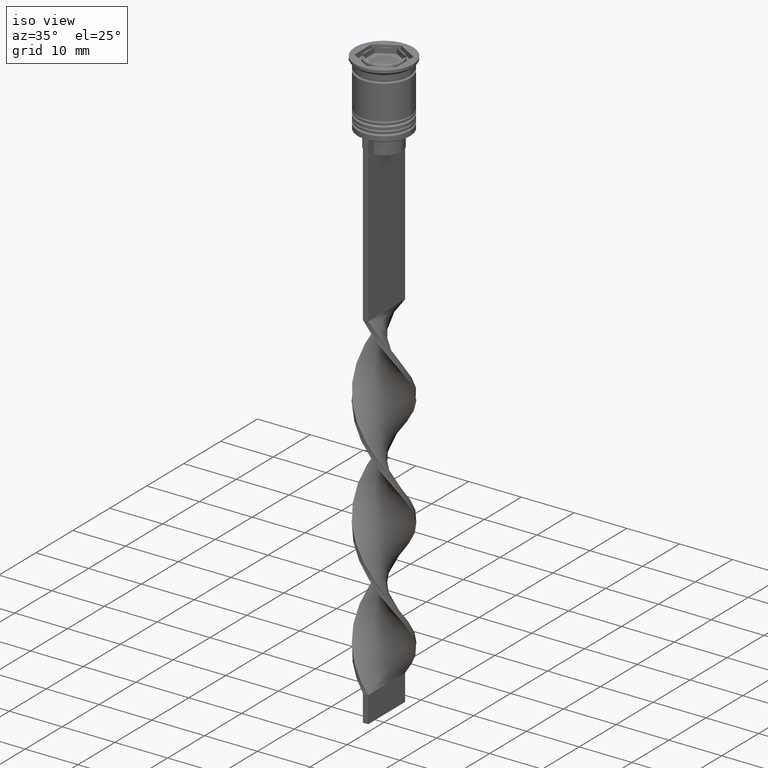
[diagram: clean part render]
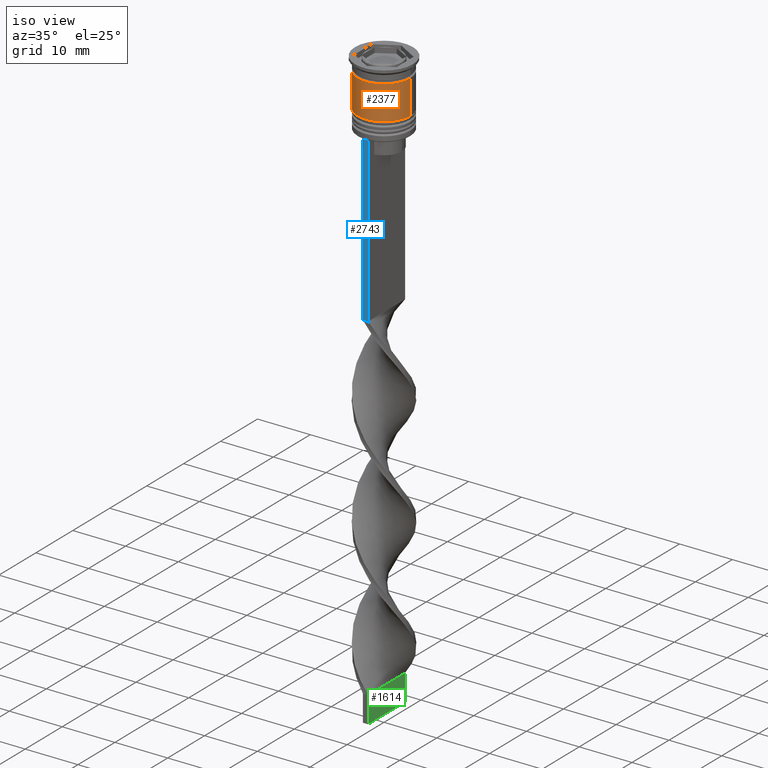
[diagram: same view with three faces highlighted in distinct colors, each labeled with its STEP entity id]
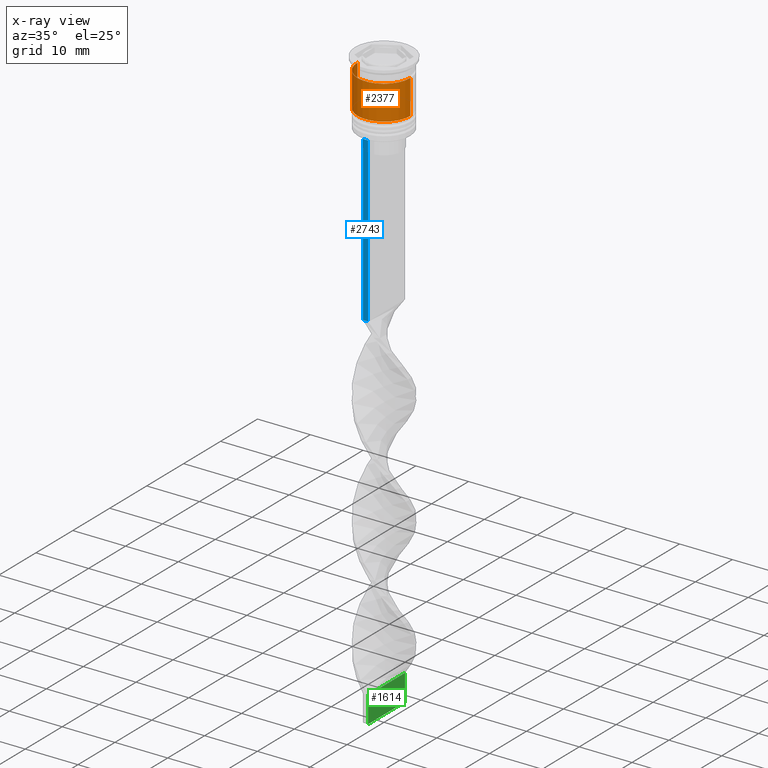
[diagram: x-ray of the same camera — body ghosted, the three highlighted faces saturated]
A machine part, iso view with three faces highlighted in distinct colors.
The next image is the same camera in x-ray (body ghosted, the three faces saturated) — at least one of them is partly hidden behind the body in this view.
Their STEP definitions:

[orange] entity #2377 — the highlighted cylindrical surface (edge-blend (fillet) strip) has radius 5 mm, axis along (-0, -0, 1).
#62 = CARTESIAN_POINT ( 'NONE',  ( 5.000000000000000000, 0.000000000000000000, 0.000000000000000000 ) ) ;
#206 = AXIS2_PLACEMENT_3D ( 'NONE', #3437, #259, #2006 ) ;
#233 = CARTESIAN_POINT ( 'NONE',  ( -5.000000000000000000, 6.123233995736766282E-16, 0.000000000000000000 ) ) ;
#259 = DIRECTION ( 'NONE',  ( -0.000000000000000000, -0.000000000000000000, 1.000000000000000000 ) ) ;
#412 = VERTEX_POINT ( 'NONE', #2005 ) ;
#437 = VECTOR ( 'NONE', #465, 1000.000000000000000 ) ;
#465 = DIRECTION ( 'NONE',  ( -0.000000000000000000, -0.000000000000000000, 1.000000000000000000 ) ) ;
#477 = DIRECTION ( 'NONE',  ( 1.000000000000000000, 0.000000000000000000, 0.000000000000000000 ) ) ;
#753 = ORIENTED_EDGE ( 'NONE', *, *, #3442, .F. ) ;
#1134 = CYLINDRICAL_SURFACE ( 'NONE', #206, 5.000000000000000000 ) ;
#1149 = CIRCLE ( 'NONE', #2590, 4.999999999999999112 ) ;
#1251 = EDGE_CURVE ( 'NONE', #1607, #412, #3069, .T. ) ;
#1367 = EDGE_CURVE ( 'NONE', #1968, #3386, #1149, .T. ) ;
#1527 = CARTESIAN_POINT ( 'NONE',  ( 4.999999999999999112, 0.000000000000000000, -2.500000000000000000 ) ) ;
#1607 = VERTEX_POINT ( 'NONE', #2159 ) ;
#1680 = CARTESIAN_POINT ( 'NONE',  ( -4.999999999999999112, 6.123233995736766282E-16, -2.500000000000000000 ) ) ;
#1830 = LINE ( 'NONE', #62, #2710 ) ;
#1835 = DIRECTION ( 'NONE',  ( -0.000000000000000000, -0.000000000000000000, 1.000000000000000000 ) ) ;
#1968 = VERTEX_POINT ( 'NONE', #1680 ) ;
#2005 = CARTESIAN_POINT ( 'NONE',  ( 5.000000000000000888, 0.000000000000000000, -9.000000000000001776 ) ) ;
#2006 = DIRECTION ( 'NONE',  ( 1.000000000000000000, 0.000000000000000000, 0.000000000000000000 ) ) ;
#2159 = CARTESIAN_POINT ( 'NONE',  ( -5.000000000000000888, 6.123233995736767268E-16, -9.000000000000001776 ) ) ;
#2237 = ORIENTED_EDGE ( 'NONE', *, *, #1367, .F. ) ;
#2349 = DIRECTION ( 'NONE',  ( -0.000000000000000000, -0.000000000000000000, 1.000000000000000000 ) ) ;
#2377 = ADVANCED_FACE ( 'NONE', ( #2820 ), #1134, .T. ) ;
#2432 = DIRECTION ( 'NONE',  ( -0.000000000000000000, -0.000000000000000000, 1.000000000000000000 ) ) ;
#2590 = AXIS2_PLACEMENT_3D ( 'NONE', #3549, #2432, #3616 ) ;
#2646 = AXIS2_PLACEMENT_3D ( 'NONE', #3528, #1835, #477 ) ;
#2710 = VECTOR ( 'NONE', #2349, 1000.000000000000000 ) ;
#2786 = ORIENTED_EDGE ( 'NONE', *, *, #2928, .T. ) ;
#2799 = LINE ( 'NONE', #233, #437 ) ;
#2820 = FACE_OUTER_BOUND ( 'NONE', #3615, .T. ) ;
#2928 = EDGE_CURVE ( 'NONE', #412, #3386, #1830, .T. ) ;
#3069 = CIRCLE ( 'NONE', #2646, 5.000000000000000888 ) ;
#3300 = ORIENTED_EDGE ( 'NONE', *, *, #1251, .T. ) ;
#3386 = VERTEX_POINT ( 'NONE', #1527 ) ;
#3437 = CARTESIAN_POINT ( 'NONE',  ( 0.000000000000000000, 0.000000000000000000, 0.000000000000000000 ) ) ;
#3442 = EDGE_CURVE ( 'NONE', #1607, #1968, #2799, .T. ) ;
#3528 = CARTESIAN_POINT ( 'NONE',  ( 0.000000000000000000, 0.000000000000000000, -9.000000000000001776 ) ) ;
#3549 = CARTESIAN_POINT ( 'NONE',  ( 0.000000000000000000, 0.000000000000000000, -2.500000000000000000 ) ) ;
#3615 = EDGE_LOOP ( 'NONE', ( #753, #3300, #2786, #2237 ) ) ;
#3616 = DIRECTION ( 'NONE',  ( 1.000000000000000000, 0.000000000000000000, 0.000000000000000000 ) ) ;

[blue] entity #2743 — the highlighted planar face has unit normal (0, -1, -0).
#183 = PLANE ( 'NONE',  #2775 ) ;
#205 = EDGE_CURVE ( 'NONE', #320, #1620, #1652, .T. ) ;
#320 = VERTEX_POINT ( 'NONE', #2639 ) ;
#439 = ORIENTED_EDGE ( 'NONE', *, *, #2972, .F. ) ;
#448 = FACE_OUTER_BOUND ( 'NONE', #776, .T. ) ;
#495 = CARTESIAN_POINT ( 'NONE',  ( 0.5000000000000000000, -4.999999999999999112, -2.450124378879110054 ) ) ;
#625 = DIRECTION ( 'NONE',  ( 0.000000000000000000, 0.000000000000000000, -1.000000000000000000 ) ) ;
#776 = EDGE_LOOP ( 'NONE', ( #2029, #3107, #439, #3192 ) ) ;
#824 = VERTEX_POINT ( 'NONE', #3308 ) ;
#1141 = VECTOR ( 'NONE', #1972, 1000.000000000000000 ) ;
#1243 = LINE ( 'NONE', #2111, #3364 ) ;
#1467 = VERTEX_POINT ( 'NONE', #3632 ) ;
#1587 = DIRECTION ( 'NONE',  ( 0.000000000000000000, 0.000000000000000000, -1.000000000000000000 ) ) ;
#1620 = VERTEX_POINT ( 'NONE', #3501 ) ;
#1652 = LINE ( 'NONE', #3649, #1141 ) ;
#1891 = DIRECTION ( 'NONE',  ( 0.000000000000000000, -1.000000000000000000, -0.000000000000000000 ) ) ;
#1972 = DIRECTION ( 'NONE',  ( 1.000000000000000000, 0.000000000000000000, 0.000000000000000000 ) ) ;
#2029 = ORIENTED_EDGE ( 'NONE', *, *, #205, .F. ) ;
#2075 = CARTESIAN_POINT ( 'NONE',  ( -0.5000000000000000000, -4.999999999999999112, -2.450124378879110054 ) ) ;
#2085 = CARTESIAN_POINT ( 'NONE',  ( 0.5000000000000000000, -4.999999999999999112, -2.450124378879110054 ) ) ;
#2111 = CARTESIAN_POINT ( 'NONE',  ( 0.5000000000000000000, -4.999999999999999112, -43.50000000000000000 ) ) ;
#2328 = EDGE_CURVE ( 'NONE', #1620, #824, #2920, .T. ) ;
#2387 = DIRECTION ( 'NONE',  ( -1.000000000000000000, 0.000000000000000000, 0.000000000000000000 ) ) ;
#2639 = CARTESIAN_POINT ( 'NONE',  ( -0.5000000000000000000, -4.999999999999999112, -12.50000000000000000 ) ) ;
#2743 = ADVANCED_FACE ( 'NONE', ( #448 ), #183, .T. ) ;
#2775 = AXIS2_PLACEMENT_3D ( 'NONE', #495, #1891, #1587 ) ;
#2920 = LINE ( 'NONE', #2085, #2958 ) ;
#2927 = EDGE_CURVE ( 'NONE', #320, #1467, #3189, .T. ) ;
#2958 = VECTOR ( 'NONE', #3258, 1000.000000000000000 ) ;
#2972 = EDGE_CURVE ( 'NONE', #824, #1467, #1243, .T. ) ;
#3107 = ORIENTED_EDGE ( 'NONE', *, *, #2927, .T. ) ;
#3189 = LINE ( 'NONE', #2075, #3663 ) ;
#3192 = ORIENTED_EDGE ( 'NONE', *, *, #2328, .F. ) ;
#3258 = DIRECTION ( 'NONE',  ( 0.000000000000000000, 0.000000000000000000, -1.000000000000000000 ) ) ;
#3308 = CARTESIAN_POINT ( 'NONE',  ( 0.5000000000000000000, -4.999999999999999112, -43.50000000000000000 ) ) ;
#3364 = VECTOR ( 'NONE', #2387, 1000.000000000000000 ) ;
#3501 = CARTESIAN_POINT ( 'NONE',  ( 0.5000000000000000000, -4.999999999999999112, -12.50000000000000000 ) ) ;
#3632 = CARTESIAN_POINT ( 'NONE',  ( -0.5000000000000000000, -4.999999999999999112, -43.50000000000000000 ) ) ;
#3649 = CARTESIAN_POINT ( 'NONE',  ( 0.5000000000000000000, -4.999999999999999112, -12.50000000000000000 ) ) ;
#3663 = VECTOR ( 'NONE', #625, 1000.000000000000000 ) ;

[green] entity #1614 — the highlighted planar face has unit normal (-1, 0, 0).
#24 = CARTESIAN_POINT ( 'NONE',  ( 0.5000000000000006661, 4.999999999999999112, -112.5000000000000000 ) ) ;
#31 = VERTEX_POINT ( 'NONE', #977 ) ;
#240 = CARTESIAN_POINT ( 'NONE',  ( 0.5000000000000002220, 1.666666666666666075, -107.5000000000000000 ) ) ;
#314 = VECTOR ( 'NONE', #1266, 1000.000000000000000 ) ;
#457 = EDGE_CURVE ( 'NONE', #31, #3084, #821, .T. ) ;
#525 = CARTESIAN_POINT ( 'NONE',  ( 0.5000000000000006661, 4.999999999999999112, -107.5000000000000000 ) ) ;
#695 = B_SPLINE_CURVE_WITH_KNOTS ( 'NONE', 3,
 ( #3089, #240, #3075, #1647 ),
 .UNSPECIFIED., .F., .F.,
 ( 4, 4 ),
 ( 0.000000000000000000, 1.000000000000000000 ),
 .UNSPECIFIED. ) ;
#821 = LINE ( 'NONE', #1140, #2109 ) ;
#977 = CARTESIAN_POINT ( 'NONE',  ( 0.4999999999999993339, -5.000000000000000888, -112.5000000000000000 ) ) ;
#1140 = CARTESIAN_POINT ( 'NONE',  ( 0.4999999999999993339, -5.000000000000000888, -112.5000000000000000 ) ) ;
#1206 = VECTOR ( 'NONE', #1463, 1000.000000000000000 ) ;
#1220 = CARTESIAN_POINT ( 'NONE',  ( 0.5000000000000006661, 4.999999999999999112, -112.5000000000000000 ) ) ;
#1266 = DIRECTION ( 'NONE',  ( -1.301042606982605321E-16, -1.000000000000000000, 0.000000000000000000 ) ) ;
#1385 = AXIS2_PLACEMENT_3D ( 'NONE', #1220, #1843, #2364 ) ;
#1386 = EDGE_CURVE ( 'NONE', #3483, #31, #1922, .T. ) ;
#1388 = CARTESIAN_POINT ( 'NONE',  ( 0.4999999999999993339, -5.000000000000000888, -107.5000000000000000 ) ) ;
#1463 = DIRECTION ( 'NONE',  ( -0.000000000000000000, -0.000000000000000000, 1.000000000000000000 ) ) ;
#1529 = VERTEX_POINT ( 'NONE', #525 ) ;
#1614 = ADVANCED_FACE ( 'NONE', ( #3520 ), #2723, .F. ) ;
#1647 = CARTESIAN_POINT ( 'NONE',  ( 0.4999999999999993339, -5.000000000000000888, -107.5000000000000000 ) ) ;
#1843 = DIRECTION ( 'NONE',  ( -1.000000000000000000, 1.301042606982605321E-16, 0.000000000000000000 ) ) ;
#1921 = EDGE_CURVE ( 'NONE', #1529, #3084, #695, .T. ) ;
#1922 = LINE ( 'NONE', #3564, #314 ) ;
#1981 = DIRECTION ( 'NONE',  ( -0.000000000000000000, -0.000000000000000000, 1.000000000000000000 ) ) ;
#2109 = VECTOR ( 'NONE', #1981, 1000.000000000000000 ) ;
#2364 = DIRECTION ( 'NONE',  ( -1.301042606982605321E-16, -1.000000000000000000, 0.000000000000000000 ) ) ;
#2490 = ORIENTED_EDGE ( 'NONE', *, *, #457, .F. ) ;
#2625 = LINE ( 'NONE', #24, #1206 ) ;
#2723 = PLANE ( 'NONE',  #1385 ) ;
#2734 = CARTESIAN_POINT ( 'NONE',  ( 0.5000000000000006661, 4.999999999999999112, -112.5000000000000000 ) ) ;
#3075 = CARTESIAN_POINT ( 'NONE',  ( 0.4999999999999997780, -1.666666666666667851, -107.5000000000000000 ) ) ;
#3084 = VERTEX_POINT ( 'NONE', #1388 ) ;
#3089 = CARTESIAN_POINT ( 'NONE',  ( 0.5000000000000006661, 4.999999999999999112, -107.5000000000000000 ) ) ;
#3147 = EDGE_CURVE ( 'NONE', #3483, #1529, #2625, .T. ) ;
#3294 = EDGE_LOOP ( 'NONE', ( #3666, #2490, #3662, #3503 ) ) ;
#3483 = VERTEX_POINT ( 'NONE', #2734 ) ;
#3503 = ORIENTED_EDGE ( 'NONE', *, *, #3147, .T. ) ;
#3520 = FACE_OUTER_BOUND ( 'NONE', #3294, .T. ) ;
#3564 = CARTESIAN_POINT ( 'NONE',  ( 0.5000000000000006661, 4.999999999999999112, -112.5000000000000000 ) ) ;
#3662 = ORIENTED_EDGE ( 'NONE', *, *, #1386, .F. ) ;
#3666 = ORIENTED_EDGE ( 'NONE', *, *, #1921, .T. ) ;